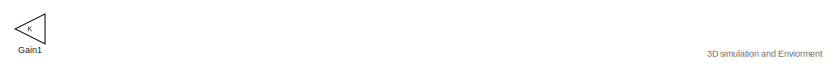
[diagram: root canvas - part 1/4, top left region]
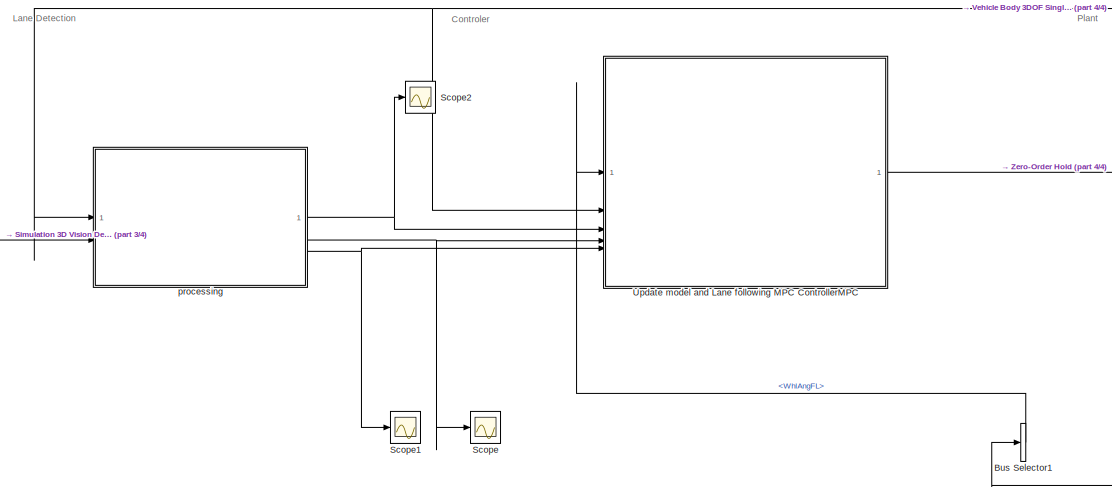
[diagram: root canvas - part 2/4, central region]
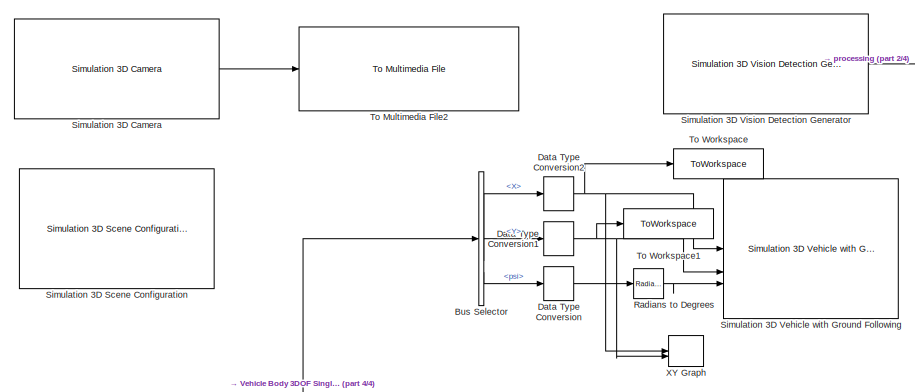
[diagram: root canvas - part 3/4, central region]
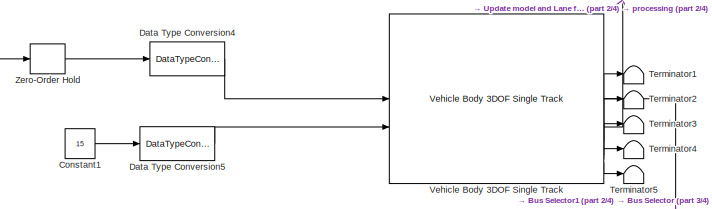
[diagram: root canvas - part 4/4, middle right region]
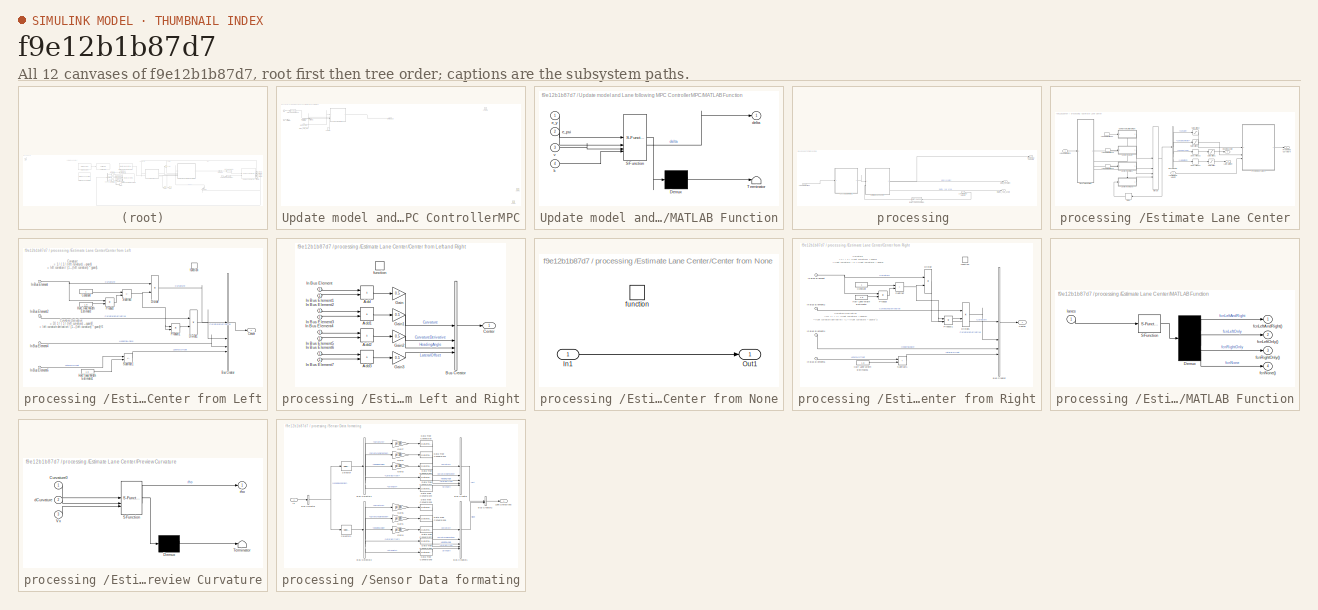
[diagram: thumbnail index - all 12 canvases of the model, root first then tree order]
MODEL slx_f9e12b1b87d7
KIND model
CONFIG AbsTol = auto
CONFIG EnableMultiTasking = off
CONFIG FixedStep = auto
CONFIG MaxStep = auto
CONFIG MinStep = auto
CONFIG RelTol = 1e-3
CONFIG SampleTimeConstraint = Unconstrained
CONFIG SolverName = VariableStepAuto
CONFIG StartTime = 0.0
CONFIG StopTime = scenarioTime
WORKSPACE source: mxarray member
WORKSPACE LaneWidth = 3.8
WORKSPACE PredictionHorizon = 30
WORKSPACE Ts = 0.01
BLOCK [BusSelector] Bus Selector
  OutputSignals = InertFrm.FrntAxl.Disp.X,InertFrm.FrntAxl.Disp.Y,InertFrm.Cg.Ang.psi
BLOCK [BusSelector] Bus Selector1
  OutputSignals = BdyFrm.FrntAxl.Steer.WhlAngFL
BLOCK [Constant] Constant1
  Value = 15
BLOCK [DataTypeConversion] Data Type Conversion
  RndMeth = Floor
  SaturateOnIntegerOverflow = off
BLOCK [DataTypeConversion] Data Type Conversion1
  RndMeth = Floor
  SaturateOnIntegerOverflow = off
BLOCK [DataTypeConversion] Data Type Conversion2
  RndMeth = Floor
  SaturateOnIntegerOverflow = off
BLOCK [DataTypeConversion] Data Type Conversion4
  RndMeth = Floor
  SaturateOnIntegerOverflow = off
BLOCK [DataTypeConversion] Data Type Conversion5
  RndMeth = Floor
  SaturateOnIntegerOverflow = off
BLOCK [Gain] Gain1
  Commented = on
  NameLocation = top
BLOCK [Reference] Radians to Degrees  REF=simulink_extras/Transformations/Radians
to Degrees
  SourceBlock = simulink_extras/Transformations/Radians\nto Degrees
  SourceType = RadiansToDegrees
BLOCK [Scope] Scope
  Floating = off
  NumInputPorts = 1
  ScopeSpecificationString = Simulink.scopes.TimeScopeBlockCfg('CurrentConfiguration', extmgr.ConfigurationSet(extmgr.Configuration('Core','General UI',true),extmgr.Configuration('Core','Source UI',true),extmgr.Configuration('Sources','WiredSimulink',true,'DataLoggingVariableName','ScopeData1'),extmgr.Configuration('Visuals','Time Domain',true,'SerializedDisplays',{struct('MinYLimReal','-0.625','MaxYLimReal','0.625','YLabelRe...<+1534ch>
BLOCK [Scope] Scope1
  Floating = off
  NumInputPorts = 1
  ScopeSpecificationString = Simulink.scopes.TimeScopeBlockCfg('CurrentConfiguration', extmgr.ConfigurationSet(extmgr.Configuration('Core','General UI',true),extmgr.Configuration('Core','Source UI',true),extmgr.Configuration('Sources','WiredSimulink',true,'DataLoggingVariableName','ScopeData2'),extmgr.Configuration('Visuals','Time Domain',true,'SerializedDisplays',{struct('MinYLimReal','-0.07041','MaxYLimReal','0.12912','YLab...<+1478ch>
BLOCK [Scope] Scope2
  Floating = off
  NumInputPorts = 1
  ScopeSpecificationString = Simulink.scopes.TimeScopeBlockCfg('CurrentConfiguration', extmgr.ConfigurationSet(extmgr.Configuration('Core','General UI',true),extmgr.Configuration('Core','Source UI',true),extmgr.Configuration('Sources','WiredSimulink',true,'DataLoggingVariableName','ScopeData1'),extmgr.Configuration('Visuals','Time Domain',true,'SerializedDisplays',{struct('MinYLimReal','-0.03239','MaxYLimReal','0.02363','YLab...<+2156ch>
BLOCK [Reference] Simulation 3D Camera  REF=sim3dcameralib/Simulation 3D Camera
  LibrarySourceBlock = drivingsim3d/Simulation 3D Camera
  Priority = 1
  SourceBlock = sim3dcameralib/Simulation 3D Camera
  SourceType = Simulation 3D Camera
BLOCK [Reference] Simulation 3D Scene Configuration  REF=sim3dlib/Simulation 3D Scene Configuration
  LibrarySourceBlock = drivingsim3d/Simulation 3D Scene Configuration
  Priority = 0
  SourceBlock = sim3dlib/Simulation 3D Scene Configuration
  SourceType = Simulation 3D Scene Configuration
BLOCK [Reference] Simulation 3D Vehicle with Ground Following  REF=sim3dautolib/Simulation 3D Vehicle with Ground Following
  LibrarySourceBlock = drivingsim3d/Simulation 3D Vehicle with Ground Following
  Priority = -1
  SourceBlock = sim3dautolib/Simulation 3D Vehicle with Ground Following
  SourceType = Simulation 3D Vehicle with Ground Following
BLOCK [Reference] Simulation 3D Vision Detection Generator  REF=drivingsim3d/Simulation 3D Vision Detection Generator
  Priority = 1
  SourceBlock = drivingsim3d/Simulation 3D Vision Detection Generator
  SourceType = Simulation 3D Vision Detection Generator
BLOCK [Terminator] Terminator1
BLOCK [Terminator] Terminator2
BLOCK [Terminator] Terminator3
BLOCK [Terminator] Terminator4
BLOCK [Terminator] Terminator5
BLOCK [Reference] To Multimedia File2  REF=dspvision/To Multimedia File
  SourceBlock = dspvision/To Multimedia File
  SourceType = To Multimedia File
BLOCK [ToWorkspace] To Workspace
  FixptAsFi = on
  MaxDataPoints = inf
  SampleTime = -1
  Save2DSignal = 2-D array (concatenate along first dimension)
  SaveFormat = Structure With Time
  VariableName = x_simout
BLOCK [ToWorkspace] To Workspace1
  FixptAsFi = on
  MaxDataPoints = inf
  SampleTime = -1
  Save2DSignal = 2-D array (concatenate along first dimension)
  SaveFormat = Structure With Time
  VariableName = y_simout
BLOCK [SubSystem] Update model and Lane following MPC ControllerMPC
BLOCK [Constant] Update model and Lane following MPC ControllerMPC/Constant
  Value = 2
BLOCK [Constant] Update model and Lane following MPC ControllerMPC/Constant5
  Value = 15
BLOCK [DataTypeConversion] Update model and Lane following MPC ControllerMPC/Data Type Conversion10
  OutDataTypeStr = single
  RndMeth = Floor
  SaturateOnIntegerOverflow = off
BLOCK [Inport] Update model and Lane following MPC ControllerMPC/In2
  Port = 2
BLOCK [Inport] Update model and Lane following MPC ControllerMPC/In3
BLOCK [SubSystem] Update model and Lane following MPC ControllerMPC/MATLAB Function
  ErrorFcn = Stateflow.Translate.translate
  PermitHierarchicalResolution = ExplicitOnly
  SFBlockType = MATLAB Function
  TreatAsAtomicUnit = on
BLOCK [Demux] Update model and Lane following MPC ControllerMPC/MATLAB Function/ Demux 
  Outputs = 1
BLOCK [S-Function] Update model and Lane following MPC ControllerMPC/MATLAB Function/ SFunction 
  EnableBusSupport = on
  FunctionName = sf_sfun
  PortCounts = [4 2]
  SFcnIsStateOwnerBlock = off
  SFunctionDeploymentMode = off
  Tag = Stateflow S-Function 2
BLOCK [Terminator] Update model and Lane following MPC ControllerMPC/MATLAB Function/ Terminator 
BLOCK [Outport] Update model and Lane following MPC ControllerMPC/MATLAB Function/delta
BLOCK [Inport] Update model and Lane following MPC ControllerMPC/MATLAB Function/e_psi
  Port = 2
BLOCK [Inport] Update model and Lane following MPC ControllerMPC/MATLAB Function/e_y
BLOCK [Inport] Update model and Lane following MPC ControllerMPC/MATLAB Function/k
  Port = 4
BLOCK [Inport] Update model and Lane following MPC ControllerMPC/MATLAB Function/v
  Port = 3
BLOCK [Inport] Update model and Lane following MPC ControllerMPC/Previewed Curvature
  Port = 3
BLOCK [Scope] Update model and Lane following MPC ControllerMPC/Scope1
  Floating = off
  NumInputPorts = 1
  ScopeSpecificationString = Simulink.scopes.TimeScopeBlockCfg
BLOCK [Scope] Update model and Lane following MPC ControllerMPC/Scope5
  Floating = off
  NumInputPorts = 1
  ScopeSpecificationString = Simulink.scopes.TimeScopeBlockCfg
BLOCK [Outport] Update model and Lane following MPC ControllerMPC/Steering angle
BLOCK [Terminator] Update model and Lane following MPC ControllerMPC/Terminator
BLOCK [Terminator] Update model and Lane following MPC ControllerMPC/Terminator1
BLOCK [Inport] Update model and Lane following MPC ControllerMPC/lateral_deviation
  Port = 4
BLOCK [Inport] Update model and Lane following MPC ControllerMPC/relative_yaw_angle
  Port = 5
BLOCK [Reference] Vehicle Body 3DOF Single Track  REF=autolibshared/Vehicle Body 3DOF Single Track
  LibrarySourceBlock = vehdynlibeom/Vehicle Body 3DOF Single Track
  SourceBlock = autolibshared/Vehicle Body 3DOF Single Track
  SourceType = Vehicle Body 3DOF Lateral
BLOCK [Record] XY Graph
  CompatibilityTag = XY
  FileSettingsInternal = {"entries":[{"content":{"excelSettings":{"content":{},"type":"Streamout.ExcelSettings"}},"type":"Streamout.FileSettingStorage","uuid":""}],"packageUris":["http:\/\/schema.mathworks.com\/mf0\/streamout_blocks\/R2020a"],"version":"1.0"}
  Layout = [1 1]
  SignalsInternal = {"entries":[{"content":{"signals":[{"content":{"blockPath":[],"dimensions":[1],"domain":"","lineColor":"#d95319","lineWidth":2,"port":1,"sid":[""],"signalID":1,"signalName":"Data Type Conversion2"},"type":"RecordBlkView.Signal","uuid":""},{"content":{"blockPath":[],"dimensions":[1],"domain":"","lineColor":"#edb120","lineWidth":2,"port":2,"sid":[""],"signalID":2,"signalName":"Data Type Conversion1"...<+188ch>
  VisualizationBindings = {"mapsplugin":{"info":[{"bindingParametersList":[],"subplotID":1}]}}
BLOCK [ZeroOrderHold] Zero-Order Hold
  SampleTime = 0.1
BLOCK [SubSystem] processing 
BLOCK [DataTypeConversion] processing /Data Type Conversion
  NameLocation = top
  OutDataTypeStr = single
  RndMeth = Floor
  SaturateOnIntegerOverflow = off
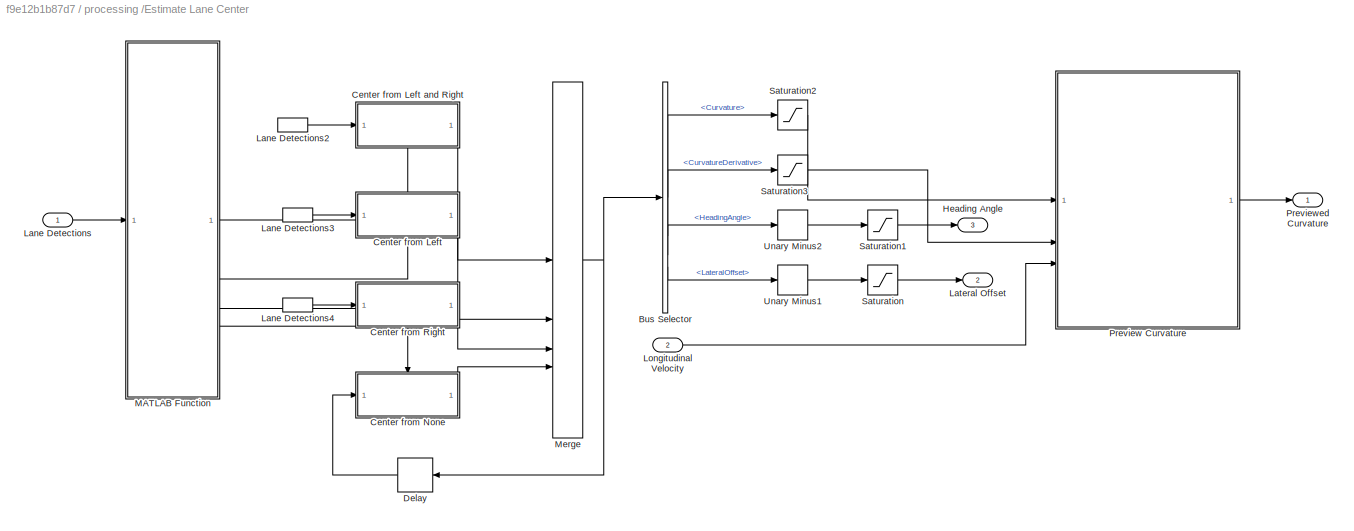
BLOCK [SubSystem] processing /Estimate Lane Center
  VariantControl = v2
BLOCK [BusSelector] processing /Estimate Lane Center/Bus Selector
  OutputSignals = Curvature,CurvatureDerivative,HeadingAngle,LateralOffset
BLOCK [SubSystem] processing /Estimate Lane Center/Center from Left
  TreatAsAtomicUnit = on
BLOCK [SubSystem] processing /Estimate Lane Center/Center from Left and Right
  TreatAsAtomicUnit = on
BLOCK [Sum] processing /Estimate Lane Center/Center from Left and Right/Add
  IconShape = rectangular
BLOCK [Sum] processing /Estimate Lane Center/Center from Left and Right/Add1
  IconShape = rectangular
BLOCK [Sum] processing /Estimate Lane Center/Center from Left and Right/Add2
  IconShape = rectangular
BLOCK [Sum] processing /Estimate Lane Center/Center from Left and Right/Add3
  IconShape = rectangular
BLOCK [BusCreator] processing /Estimate Lane Center/Center from Left and Right/Bus Creator
  DisplayOption = bar
  InheritFromInputs = on
  Inputs = 4
BLOCK [Outport] processing /Estimate Lane Center/Center from Left and Right/Center
  VectorParamsAs1DForOutWhenUnconnected = off
BLOCK [Gain] processing /Estimate Lane Center/Center from Left and Right/Gain
  Gain = 0.5
BLOCK [Gain] processing /Estimate Lane Center/Center from Left and Right/Gain1
  Gain = 0.5
BLOCK [Gain] processing /Estimate Lane Center/Center from Left and Right/Gain2
  Gain = 0.5
BLOCK [Gain] processing /Estimate Lane Center/Center from Left and Right/Gain3
  Gain = 0.5
BLOCK [Inport] processing /Estimate Lane Center/Center from Left and Right/In Bus Element
BLOCK [Inport] processing /Estimate Lane Center/Center from Left and Right/In Bus Element1
BLOCK [Inport] processing /Estimate Lane Center/Center from Left and Right/In Bus Element2
BLOCK [Inport] processing /Estimate Lane Center/Center from Left and Right/In Bus Element3
BLOCK [Inport] processing /Estimate Lane Center/Center from Left and Right/In Bus Element4
BLOCK [Inport] processing /Estimate Lane Center/Center from Left and Right/In Bus Element5
BLOCK [Inport] processing /Estimate Lane Center/Center from Left and Right/In Bus Element6
BLOCK [Inport] processing /Estimate Lane Center/Center from Left and Right/In Bus Element7
BLOCK [TriggerPort] processing /Estimate Lane Center/Center from Left and Right/function
  StatesWhenEnabling = held
  TriggerType = function-call
  VariantControl = Variant
BLOCK [BusCreator] processing /Estimate Lane Center/Center from Left/Bus Creator
  DisplayOption = bar
  InheritFromInputs = on
  Inputs = 4
BLOCK [Outport] processing /Estimate Lane Center/Center from Left/Center
  VectorParamsAs1DForOutWhenUnconnected = off
BLOCK [Constant] processing /Estimate Lane Center/Center from Left/Constant
  OutDataTypeStr = Inherit: Inherit via back propagation
BLOCK [Product] processing /Estimate Lane Center/Center from Left/Divide
  Inputs = */
BLOCK [Product] processing /Estimate Lane Center/Center from Left/Divide1
  Inputs = */
BLOCK [Constant] processing /Estimate Lane Center/Center from Left/Half Lane Width Estimate
  OutDataTypeStr = Inherit: Inherit via back propagation
  Value = 1.8
BLOCK [Constant] processing /Estimate Lane Center/Center from Left/Half Lane Width Estimate1
  OutDataTypeStr = Inherit: Inherit via back propagation
  Value = 1.8
BLOCK [Inport] processing /Estimate Lane Center/Center from Left/In Bus Element
BLOCK [Inport] processing /Estimate Lane Center/Center from Left/In Bus Element2
BLOCK [Inport] processing /Estimate Lane Center/Center from Left/In Bus Element4
BLOCK [Inport] processing /Estimate Lane Center/Center from Left/In Bus Element6
BLOCK [Product] processing /Estimate Lane Center/Center from Left/Product
BLOCK [Product] processing /Estimate Lane Center/Center from Left/Product1
BLOCK [Sum] processing /Estimate Lane Center/Center from Left/Subtract
  IconShape = rectangular
  Inputs = +-
BLOCK [Sum] processing /Estimate Lane Center/Center from Left/Subtract1
  IconShape = rectangular
  Inputs = +-
BLOCK [TriggerPort] processing /Estimate Lane Center/Center from Left/function
  StatesWhenEnabling = held
  TriggerType = function-call
  VariantControl = Variant
BLOCK [SubSystem] processing /Estimate Lane Center/Center from None
  TreatAsAtomicUnit = on
BLOCK [Inport] processing /Estimate Lane Center/Center from None/In1
BLOCK [Outport] processing /Estimate Lane Center/Center from None/Out1
  VectorParamsAs1DForOutWhenUnconnected = off
BLOCK [TriggerPort] processing /Estimate Lane Center/Center from None/function
  StatesWhenEnabling = held
  TriggerType = function-call
  VariantControl = Variant
BLOCK [SubSystem] processing /Estimate Lane Center/Center from Right
  TreatAsAtomicUnit = on
BLOCK [BusCreator] processing /Estimate Lane Center/Center from Right/Bus Creator
  DisplayOption = bar
  InheritFromInputs = on
  Inputs = 4
BLOCK [Outport] processing /Estimate Lane Center/Center from Right/Center
  VectorParamsAs1DForOutWhenUnconnected = off
BLOCK [Constant] processing /Estimate Lane Center/Center from Right/Constant
  OutDataTypeStr = Inherit: Inherit via back propagation
BLOCK [Product] processing /Estimate Lane Center/Center from Right/Divide
  Inputs = */
BLOCK [Product] processing /Estimate Lane Center/Center from Right/Divide1
  Inputs = */
BLOCK [Constant] processing /Estimate Lane Center/Center from Right/Half Lane Width Estimate
  OutDataTypeStr = Inherit: Inherit via back propagation
  Value = 1.8
BLOCK [Constant] processing /Estimate Lane Center/Center from Right/Half Lane Width Estimate1
  OutDataTypeStr = Inherit: Inherit via back propagation
  Value = 1.8
BLOCK [Inport] processing /Estimate Lane Center/Center from Right/In Bus Element
BLOCK [Inport] processing /Estimate Lane Center/Center from Right/In Bus Element2
BLOCK [Inport] processing /Estimate Lane Center/Center from Right/In Bus Element4
BLOCK [Inport] processing /Estimate Lane Center/Center from Right/In Bus Element6
BLOCK [Product] processing /Estimate Lane Center/Center from Right/Product
BLOCK [Product] processing /Estimate Lane Center/Center from Right/Product1
BLOCK [Sum] processing /Estimate Lane Center/Center from Right/Subtract
  IconShape = rectangular
BLOCK [Sum] processing /Estimate Lane Center/Center from Right/Subtract1
  IconShape = rectangular
BLOCK [TriggerPort] processing /Estimate Lane Center/Center from Right/function
  StatesWhenEnabling = held
  TriggerType = function-call
  VariantControl = Variant
BLOCK [Delay] processing /Estimate Lane Center/Delay
  DelayLength = 1
  InputPortMap = u0
BLOCK [Outport] processing /Estimate Lane Center/Heading Angle
  Port = 3
  VectorParamsAs1DForOutWhenUnconnected = off
BLOCK [Inport] processing /Estimate Lane Center/Lane Detections
BLOCK [InportShadow] processing /Estimate Lane Center/Lane Detections2
BLOCK [InportShadow] processing /Estimate Lane Center/Lane Detections3
BLOCK [InportShadow] processing /Estimate Lane Center/Lane Detections4
BLOCK [Outport] processing /Estimate Lane Center/Lateral Offset
  Port = 2
  VectorParamsAs1DForOutWhenUnconnected = off
BLOCK [Inport] processing /Estimate Lane Center/Longitudinal Velocity
  OutDataTypeStr = single
  Port = 2
BLOCK [SubSystem] processing /Estimate Lane Center/MATLAB Function
  ErrorFcn = Stateflow.Translate.translate
  PermitHierarchicalResolution = ExplicitOnly
  SFBlockType = MATLAB Function
  TreatAsAtomicUnit = on
BLOCK [Demux] processing /Estimate Lane Center/MATLAB Function/ Demux 
BLOCK [S-Function] processing /Estimate Lane Center/MATLAB Function/ SFunction 
  EnableBusSupport = on
  FunctionName = sf_sfun
  PortCounts = [1 1]
  SFcnIsStateOwnerBlock = off
  SFunctionDeploymentMode = off
  Tag = Stateflow S-Function 3
BLOCK [Outport] processing /Estimate Lane Center/MATLAB Function/fcnLeftAndRight()
  VectorParamsAs1DForOutWhenUnconnected = off
BLOCK [Outport] processing /Estimate Lane Center/MATLAB Function/fcnLeftOnly()
  Port = 2
  VectorParamsAs1DForOutWhenUnconnected = off
BLOCK [Outport] processing /Estimate Lane Center/MATLAB Function/fcnNone()
  Port = 4
  VectorParamsAs1DForOutWhenUnconnected = off
BLOCK [Outport] processing /Estimate Lane Center/MATLAB Function/fcnRightOnly()
  Port = 3
  VectorParamsAs1DForOutWhenUnconnected = off
BLOCK [Inport] processing /Estimate Lane Center/MATLAB Function/lanes
BLOCK [Merge] processing /Estimate Lane Center/Merge
  Inputs = 4
BLOCK [SubSystem] processing /Estimate Lane Center/Preview Curvature
  ErrorFcn = Stateflow.Translate.translate
  PermitHierarchicalResolution = ExplicitOnly
  SFBlockType = MATLAB Function
  SystemSampleTime = Ts
  TreatAsAtomicUnit = on
BLOCK [Demux] processing /Estimate Lane Center/Preview Curvature/ Demux 
  Outputs = 1
BLOCK [S-Function] processing /Estimate Lane Center/Preview Curvature/ SFunction 
  EnableBusSupport = on
  FunctionName = sf_sfun
  Parameters = PredictionHorizon,Ts
  PortCounts = [3 2]
  SFcnIsStateOwnerBlock = off
  SFunctionDeploymentMode = off
  Tag = Stateflow S-Function 4
BLOCK [Terminator] processing /Estimate Lane Center/Preview Curvature/ Terminator 
BLOCK [Inport] processing /Estimate Lane Center/Preview Curvature/Curvature0
BLOCK [Inport] processing /Estimate Lane Center/Preview Curvature/Vx
  Port = 3
BLOCK [Inport] processing /Estimate Lane Center/Preview Curvature/dCurvature
  Port = 2
BLOCK [Outport] processing /Estimate Lane Center/Preview Curvature/rho
  VectorParamsAs1DForOutWhenUnconnected = off
BLOCK [Outport] processing /Estimate Lane Center/Previewed Curvature
  VectorParamsAs1DForOutWhenUnconnected = off
BLOCK [Saturate] processing /Estimate Lane Center/Saturation
BLOCK [Saturate] processing /Estimate Lane Center/Saturation1
  LowerLimit = -0.6
  UpperLimit = 0.6
BLOCK [Saturate] processing /Estimate Lane Center/Saturation2
  LowerLimit = -0.15
  UpperLimit = 0.15
BLOCK [Saturate] processing /Estimate Lane Center/Saturation3
  LowerLimit = -0.06
  UpperLimit = 0.06
BLOCK [UnaryMinus] processing /Estimate Lane Center/Unary Minus1
BLOCK [UnaryMinus] processing /Estimate Lane Center/Unary Minus2
BLOCK [Inport] processing /Lane Detections
  Port = 2
BLOCK [Inport] processing /Longitudinal Velocity
BLOCK [Outport] processing /Previewed Curvature
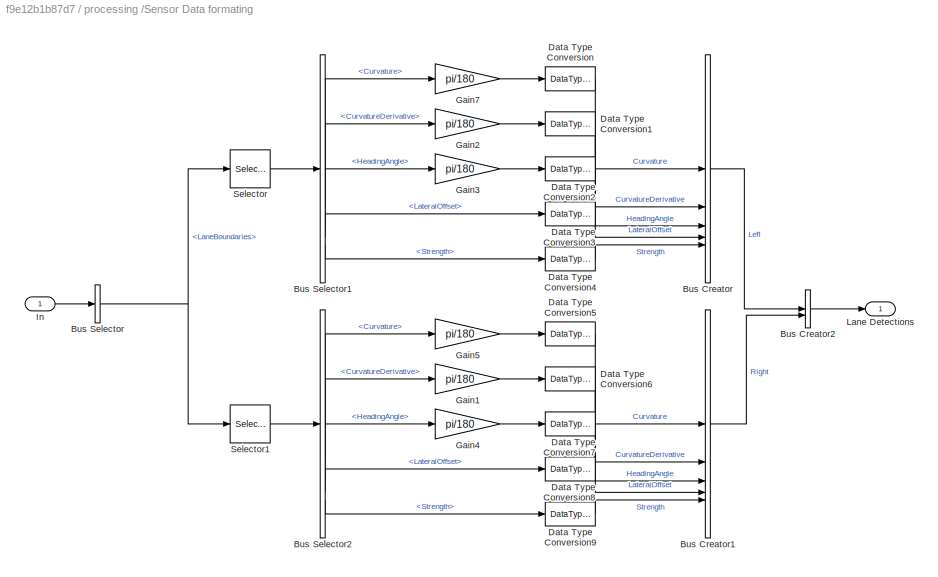
BLOCK [SubSystem] processing /Sensor Data formating
BLOCK [BusCreator] processing /Sensor Data formating/Bus Creator
  DisplayOption = bar
  InheritFromInputs = on
  Inputs = Curvature,CurvatureDerivative,HeadingAngle,LateralOffset,Strength
  OutDataTypeStr = Bus: LaneSensorBoundaries
BLOCK [BusCreator] processing /Sensor Data formating/Bus Creator1
  DisplayOption = bar
  InheritFromInputs = on
  Inputs = Curvature,CurvatureDerivative,HeadingAngle,LateralOffset,Strength
  OutDataTypeStr = Bus: LaneSensorBoundaries
BLOCK [BusCreator] processing /Sensor Data formating/Bus Creator2
  DisplayOption = bar
  InheritFromInputs = on
  Inputs = Left,Right
  OutDataTypeStr = Bus: LaneSensor
BLOCK [BusSelector] processing /Sensor Data formating/Bus Selector
  OutputSignals = LaneBoundaries
BLOCK [BusSelector] processing /Sensor Data formating/Bus Selector1
  OutputSignals = Curvature,CurvatureDerivative,HeadingAngle,LateralOffset,Strength
BLOCK [BusSelector] processing /Sensor Data formating/Bus Selector2
  OutputSignals = Curvature,CurvatureDerivative,HeadingAngle,LateralOffset,Strength
BLOCK [DataTypeConversion] processing /Sensor Data formating/Data Type Conversion
  RndMeth = Floor
  SaturateOnIntegerOverflow = off
BLOCK [DataTypeConversion] processing /Sensor Data formating/Data Type Conversion1
  RndMeth = Floor
  SaturateOnIntegerOverflow = off
BLOCK [DataTypeConversion] processing /Sensor Data formating/Data Type Conversion2
  RndMeth = Floor
  SaturateOnIntegerOverflow = off
BLOCK [DataTypeConversion] processing /Sensor Data formating/Data Type Conversion3
  RndMeth = Floor
  SaturateOnIntegerOverflow = off
BLOCK [DataTypeConversion] processing /Sensor Data formating/Data Type Conversion4
  RndMeth = Floor
  SaturateOnIntegerOverflow = off
BLOCK [DataTypeConversion] processing /Sensor Data formating/Data Type Conversion5
  RndMeth = Floor
  SaturateOnIntegerOverflow = off
BLOCK [DataTypeConversion] processing /Sensor Data formating/Data Type Conversion6
  RndMeth = Floor
  SaturateOnIntegerOverflow = off
BLOCK [DataTypeConversion] processing /Sensor Data formating/Data Type Conversion7
  RndMeth = Floor
  SaturateOnIntegerOverflow = off
BLOCK [DataTypeConversion] processing /Sensor Data formating/Data Type Conversion8
  RndMeth = Floor
  SaturateOnIntegerOverflow = off
BLOCK [DataTypeConversion] processing /Sensor Data formating/Data Type Conversion9
  RndMeth = Floor
  SaturateOnIntegerOverflow = off
BLOCK [Gain] processing /Sensor Data formating/Gain1
  Gain = pi/180
BLOCK [Gain] processing /Sensor Data formating/Gain2
  Gain = pi/180
BLOCK [Gain] processing /Sensor Data formating/Gain3
  Gain = pi/180
BLOCK [Gain] processing /Sensor Data formating/Gain4
  Gain = pi/180
BLOCK [Gain] processing /Sensor Data formating/Gain5
  Gain = pi/180
BLOCK [Gain] processing /Sensor Data formating/Gain7
  Gain = pi/180
BLOCK [Inport] processing /Sensor Data formating/In
BLOCK [Outport] processing /Sensor Data formating/Lane Detections
  VectorParamsAs1DForOutWhenUnconnected = off
BLOCK [Selector] processing /Sensor Data formating/Selector
  IndexOptions = Index vector (dialog)
  Indices = 1
  InputPortWidth = 2
  OutputSizes = 1
BLOCK [Selector] processing /Sensor Data formating/Selector1
  IndexOptions = Index vector (dialog)
  Indices = 2
  InputPortWidth = 2
  OutputSizes = 1
BLOCK [Outport] processing /lateral_deviation
  Port = 2
BLOCK [Outport] processing /relative_yaw_angle
  Port = 3
ANNOTATION (root): 3D simulation and Enviorment
ANNOTATION (root): Controler
ANNOTATION (root): Lane Detection
ANNOTATION (root): Plant
ANNOTATION processing /Estimate Lane Center/Center from Left: Curvature = 1 / ( 1 / (left curvature) – guard) = left curvature / (1 – (left curvature) * guard).
ANNOTATION processing /Estimate Lane Center/Center from Left: Curvature Derivative = D[ 1 / ( 1 / (left curvature) – guard)] = left curvature derivative / (1 – (left curvature) * guard)^2.
ANNOTATION processing /Estimate Lane Center/Center from Right: Curvature = 1 / ( 1 / (right curvature) + guard) = right curvature / (1 + (right curvature) * guard)
ANNOTATION processing /Estimate Lane Center/Center from Right: Curvature Derivative = D[ 1 / ( 1 / (right curvature) + guard)] = right curvature derivative / (1 + (right curvature) * guard)^2
LINE Bus Selector1:1 -> Update model and Lane following MPC ControllerMPC:1
LINE Bus Selector:1 -> Data Type Conversion2:1
LINE Bus Selector:2 -> Data Type Conversion1:1
LINE Bus Selector:3 -> Data Type Conversion:1
LINE Constant1:1 -> Data Type Conversion5:1
NET Data Type Conversion1:1 -> Simulation 3D Vehicle with Ground Following:2, To Workspace1:1, XY Graph:2
NET Data Type Conversion2:1 -> Simulation 3D Vehicle with Ground Following:1, To Workspace:1, XY Graph:1
LINE Data Type Conversion4:1 -> Vehicle Body 3DOF Single Track:1
LINE Data Type Conversion5:1 -> Vehicle Body 3DOF Single Track:2
LINE Data Type Conversion:1 -> Radians to Degrees:1
LINE Radians to Degrees:1 -> Simulation 3D Vehicle with Ground Following:3
LINE Simulation 3D Camera:1 -> To Multimedia File2:1
LINE Simulation 3D Vision Detection Generator:1 -> processing :2
LINE Update model and Lane following MPC ControllerMPC/Constant:1 -> Update model and Lane following MPC ControllerMPC/MATLAB Function:4
LINE Update model and Lane following MPC ControllerMPC/Data Type Conversion10:1 -> Update model and Lane following MPC ControllerMPC/MATLAB Function:3
LINE Update model and Lane following MPC ControllerMPC/In2:1 -> Update model and Lane following MPC ControllerMPC/Data Type Conversion10:1
LINE Update model and Lane following MPC ControllerMPC/In3:1 -> Update model and Lane following MPC ControllerMPC/Terminator:1
LINE Update model and Lane following MPC ControllerMPC/MATLAB Function:1 -> Update model and Lane following MPC ControllerMPC/Steering angle:1
LINE Update model and Lane following MPC ControllerMPC/Previewed Curvature:1 -> Update model and Lane following MPC ControllerMPC/Terminator1:1
LINE Update model and Lane following MPC ControllerMPC/lateral_deviation:1 -> Update model and Lane following MPC ControllerMPC/MATLAB Function:1
LINE Update model and Lane following MPC ControllerMPC/relative_yaw_angle:1 -> Update model and Lane following MPC ControllerMPC/MATLAB Function:2
LINE Update model and Lane following MPC ControllerMPC:1 -> Zero-Order Hold:1
NET Vehicle Body 3DOF Single Track:1 -> Bus Selector1:1, Bus Selector:1
NET Vehicle Body 3DOF Single Track:2 -> Update model and Lane following MPC ControllerMPC:2, processing :1
LINE Vehicle Body 3DOF Single Track:3 -> Terminator1:1
LINE Vehicle Body 3DOF Single Track:4 -> Terminator2:1
LINE Vehicle Body 3DOF Single Track:5 -> Terminator3:1
LINE Vehicle Body 3DOF Single Track:6 -> Terminator4:1
LINE Vehicle Body 3DOF Single Track:7 -> Terminator5:1
LINE Zero-Order Hold:1 -> Data Type Conversion4:1
LINE processing /Data Type Conversion:1 -> processing /Estimate Lane Center:2
LINE processing /Estimate Lane Center/Bus Selector:1 -> processing /Estimate Lane Center/Saturation2:1
LINE processing /Estimate Lane Center/Bus Selector:2 -> processing /Estimate Lane Center/Saturation3:1
LINE processing /Estimate Lane Center/Bus Selector:3 -> processing /Estimate Lane Center/Unary Minus2:1
LINE processing /Estimate Lane Center/Bus Selector:4 -> processing /Estimate Lane Center/Unary Minus1:1
LINE processing /Estimate Lane Center/Center from Left and Right/Add1:1 -> processing /Estimate Lane Center/Center from Left and Right/Gain1:1
LINE processing /Estimate Lane Center/Center from Left and Right/Add2:1 -> processing /Estimate Lane Center/Center from Left and Right/Gain2:1
LINE processing /Estimate Lane Center/Center from Left and Right/Add3:1 -> processing /Estimate Lane Center/Center from Left and Right/Gain3:1
LINE processing /Estimate Lane Center/Center from Left and Right/Add:1 -> processing /Estimate Lane Center/Center from Left and Right/Gain:1
LINE processing /Estimate Lane Center/Center from Left and Right/Bus Creator:1 -> processing /Estimate Lane Center/Center from Left and Right/Center:1
LINE processing /Estimate Lane Center/Center from Left and Right/Gain1:1 -> processing /Estimate Lane Center/Center from Left and Right/Bus Creator:2
LINE processing /Estimate Lane Center/Center from Left and Right/Gain2:1 -> processing /Estimate Lane Center/Center from Left and Right/Bus Creator:3
LINE processing /Estimate Lane Center/Center from Left and Right/Gain3:1 -> processing /Estimate Lane Center/Center from Left and Right/Bus Creator:4
LINE processing /Estimate Lane Center/Center from Left and Right/Gain:1 -> processing /Estimate Lane Center/Center from Left and Right/Bus Creator:1
LINE processing /Estimate Lane Center/Center from Left and Right/In Bus Element1:1 -> processing /Estimate Lane Center/Center from Left and Right/Add:2
LINE processing /Estimate Lane Center/Center from Left and Right/In Bus Element2:1 -> processing /Estimate Lane Center/Center from Left and Right/Add1:1
LINE processing /Estimate Lane Center/Center from Left and Right/In Bus Element3:1 -> processing /Estimate Lane Center/Center from Left and Right/Add1:2
LINE processing /Estimate Lane Center/Center from Left and Right/In Bus Element4:1 -> processing /Estimate Lane Center/Center from Left and Right/Add2:1
LINE processing /Estimate Lane Center/Center from Left and Right/In Bus Element5:1 -> processing /Estimate Lane Center/Center from Left and Right/Add2:2
LINE processing /Estimate Lane Center/Center from Left and Right/In Bus Element6:1 -> processing /Estimate Lane Center/Center from Left and Right/Add3:1
LINE processing /Estimate Lane Center/Center from Left and Right/In Bus Element7:1 -> processing /Estimate Lane Center/Center from Left and Right/Add3:2
LINE processing /Estimate Lane Center/Center from Left and Right/In Bus Element:1 -> processing /Estimate Lane Center/Center from Left and Right/Add:1
LINE processing /Estimate Lane Center/Center from Left and Right:1 -> processing /Estimate Lane Center/Merge:1
LINE processing /Estimate Lane Center/Center from Left/Bus Creator:1 -> processing /Estimate Lane Center/Center from Left/Center:1
LINE processing /Estimate Lane Center/Center from Left/Constant:1 -> processing /Estimate Lane Center/Center from Left/Subtract:1
LINE processing /Estimate Lane Center/Center from Left/Divide1:1 -> processing /Estimate Lane Center/Center from Left/Bus Creator:2
LINE processing /Estimate Lane Center/Center from Left/Divide:1 -> processing /Estimate Lane Center/Center from Left/Bus Creator:1
LINE processing /Estimate Lane Center/Center from Left/Half Lane Width Estimate1:1 -> processing /Estimate Lane Center/Center from Left/Subtract1:2
LINE processing /Estimate Lane Center/Center from Left/Half Lane Width Estimate:1 -> processing /Estimate Lane Center/Center from Left/Product:2
LINE processing /Estimate Lane Center/Center from Left/In Bus Element2:1 -> processing /Estimate Lane Center/Center from Left/Divide1:1
LINE processing /Estimate Lane Center/Center from Left/In Bus Element4:1 -> processing /Estimate Lane Center/Center from Left/Bus Creator:3
LINE processing /Estimate Lane Center/Center from Left/In Bus Element6:1 -> processing /Estimate Lane Center/Center from Left/Subtract1:1
NET processing /Estimate Lane Center/Center from Left/In Bus Element:1 -> processing /Estimate Lane Center/Center from Left/Divide:1, processing /Estimate Lane Center/Center from Left/Product:1
LINE processing /Estimate Lane Center/Center from Left/Product1:1 -> processing /Estimate Lane Center/Center from Left/Divide1:2
LINE processing /Estimate Lane Center/Center from Left/Product:1 -> processing /Estimate Lane Center/Center from Left/Subtract:2
LINE processing /Estimate Lane Center/Center from Left/Subtract1:1 -> processing /Estimate Lane Center/Center from Left/Bus Creator:4
NET processing /Estimate Lane Center/Center from Left/Subtract:1 -> processing /Estimate Lane Center/Center from Left/Divide:2, processing /Estimate Lane Center/Center from Left/Product1:1, processing /Estimate Lane Center/Center from Left/Product1:2
LINE processing /Estimate Lane Center/Center from Left:1 -> processing /Estimate Lane Center/Merge:2
LINE processing /Estimate Lane Center/Center from None/In1:1 -> processing /Estimate Lane Center/Center from None/Out1:1
LINE processing /Estimate Lane Center/Center from None:1 -> processing /Estimate Lane Center/Merge:4
LINE processing /Estimate Lane Center/Center from Right/Bus Creator:1 -> processing /Estimate Lane Center/Center from Right/Center:1
LINE processing /Estimate Lane Center/Center from Right/Constant:1 -> processing /Estimate Lane Center/Center from Right/Subtract:1
LINE processing /Estimate Lane Center/Center from Right/Divide1:1 -> processing /Estimate Lane Center/Center from Right/Bus Creator:2
LINE processing /Estimate Lane Center/Center from Right/Divide:1 -> processing /Estimate Lane Center/Center from Right/Bus Creator:1
LINE processing /Estimate Lane Center/Center from Right/Half Lane Width Estimate1:1 -> processing /Estimate Lane Center/Center from Right/Subtract1:2
LINE processing /Estimate Lane Center/Center from Right/Half Lane Width Estimate:1 -> processing /Estimate Lane Center/Center from Right/Product:2
LINE processing /Estimate Lane Center/Center from Right/In Bus Element2:1 -> processing /Estimate Lane Center/Center from Right/Divide1:1
LINE processing /Estimate Lane Center/Center from Right/In Bus Element4:1 -> processing /Estimate Lane Center/Center from Right/Bus Creator:3
LINE processing /Estimate Lane Center/Center from Right/In Bus Element6:1 -> processing /Estimate Lane Center/Center from Right/Subtract1:1
NET processing /Estimate Lane Center/Center from Right/In Bus Element:1 -> processing /Estimate Lane Center/Center from Right/Divide:1, processing /Estimate Lane Center/Center from Right/Product:1
LINE processing /Estimate Lane Center/Center from Right/Product1:1 -> processing /Estimate Lane Center/Center from Right/Divide1:2
LINE processing /Estimate Lane Center/Center from Right/Product:1 -> processing /Estimate Lane Center/Center from Right/Subtract:2
LINE processing /Estimate Lane Center/Center from Right/Subtract1:1 -> processing /Estimate Lane Center/Center from Right/Bus Creator:4
NET processing /Estimate Lane Center/Center from Right/Subtract:1 -> processing /Estimate Lane Center/Center from Right/Divide:2, processing /Estimate Lane Center/Center from Right/Product1:1, processing /Estimate Lane Center/Center from Right/Product1:2
LINE processing /Estimate Lane Center/Center from Right:1 -> processing /Estimate Lane Center/Merge:3
LINE processing /Estimate Lane Center/Delay:1 -> processing /Estimate Lane Center/Center from None:1
LINE processing /Estimate Lane Center/Lane Detections2:1 -> processing /Estimate Lane Center/Center from Left and Right:1
LINE processing /Estimate Lane Center/Lane Detections3:1 -> processing /Estimate Lane Center/Center from Left:1
LINE processing /Estimate Lane Center/Lane Detections4:1 -> processing /Estimate Lane Center/Center from Right:1
LINE processing /Estimate Lane Center/Lane Detections:1 -> processing /Estimate Lane Center/MATLAB Function:1
LINE processing /Estimate Lane Center/Longitudinal Velocity:1 -> processing /Estimate Lane Center/Preview Curvature:3
LINE processing /Estimate Lane Center/MATLAB Function:1 -> processing /Estimate Lane Center/Center from Left and Right:trigger
LINE processing /Estimate Lane Center/MATLAB Function:2 -> processing /Estimate Lane Center/Center from Left:trigger
LINE processing /Estimate Lane Center/MATLAB Function:3 -> processing /Estimate Lane Center/Center from Right:trigger
LINE processing /Estimate Lane Center/MATLAB Function:4 -> processing /Estimate Lane Center/Center from None:trigger
NET processing /Estimate Lane Center/Merge:1 -> processing /Estimate Lane Center/Bus Selector:1, processing /Estimate Lane Center/Delay:1
LINE processing /Estimate Lane Center/Preview Curvature:1 -> processing /Estimate Lane Center/Previewed Curvature:1
LINE processing /Estimate Lane Center/Saturation1:1 -> processing /Estimate Lane Center/Heading Angle:1
LINE processing /Estimate Lane Center/Saturation2:1 -> processing /Estimate Lane Center/Preview Curvature:1
LINE processing /Estimate Lane Center/Saturation3:1 -> processing /Estimate Lane Center/Preview Curvature:2
LINE processing /Estimate Lane Center/Saturation:1 -> processing /Estimate Lane Center/Lateral Offset:1
LINE processing /Estimate Lane Center/Unary Minus1:1 -> processing /Estimate Lane Center/Saturation:1
LINE processing /Estimate Lane Center/Unary Minus2:1 -> processing /Estimate Lane Center/Saturation1:1
LINE processing /Estimate Lane Center:1 -> processing /Previewed Curvature:1
LINE processing /Estimate Lane Center:2 -> processing /lateral_deviation:1
LINE processing /Estimate Lane Center:3 -> processing /relative_yaw_angle:1
LINE processing /Lane Detections:1 -> processing /Sensor Data formating:1
LINE processing /Longitudinal Velocity:1 -> processing /Data Type Conversion:1
LINE processing /Sensor Data formating/Bus Creator1:1 -> processing /Sensor Data formating/Bus Creator2:2
LINE processing /Sensor Data formating/Bus Creator2:1 -> processing /Sensor Data formating/Lane Detections:1
LINE processing /Sensor Data formating/Bus Creator:1 -> processing /Sensor Data formating/Bus Creator2:1
LINE processing /Sensor Data formating/Bus Selector1:1 -> processing /Sensor Data formating/Gain7:1
LINE processing /Sensor Data formating/Bus Selector1:2 -> processing /Sensor Data formating/Gain2:1
LINE processing /Sensor Data formating/Bus Selector1:3 -> processing /Sensor Data formating/Gain3:1
LINE processing /Sensor Data formating/Bus Selector1:4 -> processing /Sensor Data formating/Data Type Conversion3:1
LINE processing /Sensor Data formating/Bus Selector1:5 -> processing /Sensor Data formating/Data Type Conversion4:1
LINE processing /Sensor Data formating/Bus Selector2:1 -> processing /Sensor Data formating/Gain5:1
LINE processing /Sensor Data formating/Bus Selector2:2 -> processing /Sensor Data formating/Gain1:1
LINE processing /Sensor Data formating/Bus Selector2:3 -> processing /Sensor Data formating/Gain4:1
LINE processing /Sensor Data formating/Bus Selector2:4 -> processing /Sensor Data formating/Data Type Conversion8:1
LINE processing /Sensor Data formating/Bus Selector2:5 -> processing /Sensor Data formating/Data Type Conversion9:1
NET processing /Sensor Data formating/Bus Selector:1 -> processing /Sensor Data formating/Selector1:1, processing /Sensor Data formating/Selector:1
LINE processing /Sensor Data formating/Data Type Conversion1:1 -> processing /Sensor Data formating/Bus Creator:2
LINE processing /Sensor Data formating/Data Type Conversion2:1 -> processing /Sensor Data formating/Bus Creator:3
LINE processing /Sensor Data formating/Data Type Conversion3:1 -> processing /Sensor Data formating/Bus Creator:4
LINE processing /Sensor Data formating/Data Type Conversion4:1 -> processing /Sensor Data formating/Bus Creator:5
LINE processing /Sensor Data formating/Data Type Conversion5:1 -> processing /Sensor Data formating/Bus Creator1:1
LINE processing /Sensor Data formating/Data Type Conversion6:1 -> processing /Sensor Data formating/Bus Creator1:2
LINE processing /Sensor Data formating/Data Type Conversion7:1 -> processing /Sensor Data formating/Bus Creator1:3
LINE processing /Sensor Data formating/Data Type Conversion8:1 -> processing /Sensor Data formating/Bus Creator1:4
LINE processing /Sensor Data formating/Data Type Conversion9:1 -> processing /Sensor Data formating/Bus Creator1:5
LINE processing /Sensor Data formating/Data Type Conversion:1 -> processing /Sensor Data formating/Bus Creator:1
LINE processing /Sensor Data formating/Gain1:1 -> processing /Sensor Data formating/Data Type Conversion6:1
LINE processing /Sensor Data formating/Gain2:1 -> processing /Sensor Data formating/Data Type Conversion1:1
LINE processing /Sensor Data formating/Gain3:1 -> processing /Sensor Data formating/Data Type Conversion2:1
LINE processing /Sensor Data formating/Gain4:1 -> processing /Sensor Data formating/Data Type Conversion7:1
LINE processing /Sensor Data formating/Gain5:1 -> processing /Sensor Data formating/Data Type Conversion5:1
LINE processing /Sensor Data formating/Gain7:1 -> processing /Sensor Data formating/Data Type Conversion:1
LINE processing /Sensor Data formating/In:1 -> processing /Sensor Data formating/Bus Selector:1
LINE processing /Sensor Data formating/Selector1:1 -> processing /Sensor Data formating/Bus Selector2:1
LINE processing /Sensor Data formating/Selector:1 -> processing /Sensor Data formating/Bus Selector1:1
LINE processing /Sensor Data formating:1 -> processing /Estimate Lane Center:1
NET processing :1 -> Scope2:1, Update model and Lane following MPC ControllerMPC:3
NET processing :2 -> Scope:1, Update model and Lane following MPC ControllerMPC:4
NET processing :3 -> Scope1:1, Update model and Lane following MPC ControllerMPC:5
note: NET lines group one-source signal fan-out (src -> all destinations, sorted); 1:1 wires keep LINE
CHART Update model and Lane following MPC ControllerMPC/MATLAB Function states=1 transitions=1
  STATE_LABEL 'eML_blk_kernel()'
  STATE_LABEL 'SCRIPT:\nfunction delta = stanleyController(e_y, e_psi, v, k)\n    % Stanley Controller for Path Following (Updated Version)\n    % Inputs:\n    %   e_y  - Lateral deviation from the path (m)\n    %   e_psi - Heading error (rad)\n    %   v    - Vehicle velocity (m/s)\n    %   k    - Control gain (tuning parameter)\n    %\n    % Output:\n    %   delta - Steering angle command (rad)\n    \n    % Define a small ...<+613ch>'
CHART processing /Estimate Lane Center/MATLAB Function states=1 transitions=1
  STATE_LABEL 'eML_blk_kernel()'
  STATE_LABEL 'SCRIPT:\nfunction fcn(lanes)\n\nleftStrength  = lanes.Left.Strength;\nrightStrength = lanes.Right.Strength;\n\nif (leftStrength > 0) && (rightStrength > 0)\n   fcnLeftAndRight();\n   \nelseif leftStrength > 0\n    fcnLeftOnly();\n    \nelseif rightStrength > 0\n    fcnRightOnly();\n    \nelse\n    fcnNone();\nend'
CHART processing /Estimate Lane Center/Preview Curvature states=1 transitions=1
  STATE_LABEL 'eML_blk_kernel()'
  STATE_LABEL 'SCRIPT:\nfunction rho = predictCurvature(Curvature0,dCurvature,Vx,Ts, PredictionHorizon)\n% Curvature0 = initial curvature per unit length                  [1/m]\n% dCurvature = (constant) derivative of curvature per unit length [1/m^2]\n% CurvatureLength = length for which the clothoid model is valid [m]\n% Vx = speed of vehicle\n\n% We want to export a set of curvatures at a uniform sample time ahead.\n...<+447ch>'
CHART  states=0 transitions=0
CHART  states=0 transitions=0
CHART  states=0 transitions=0
